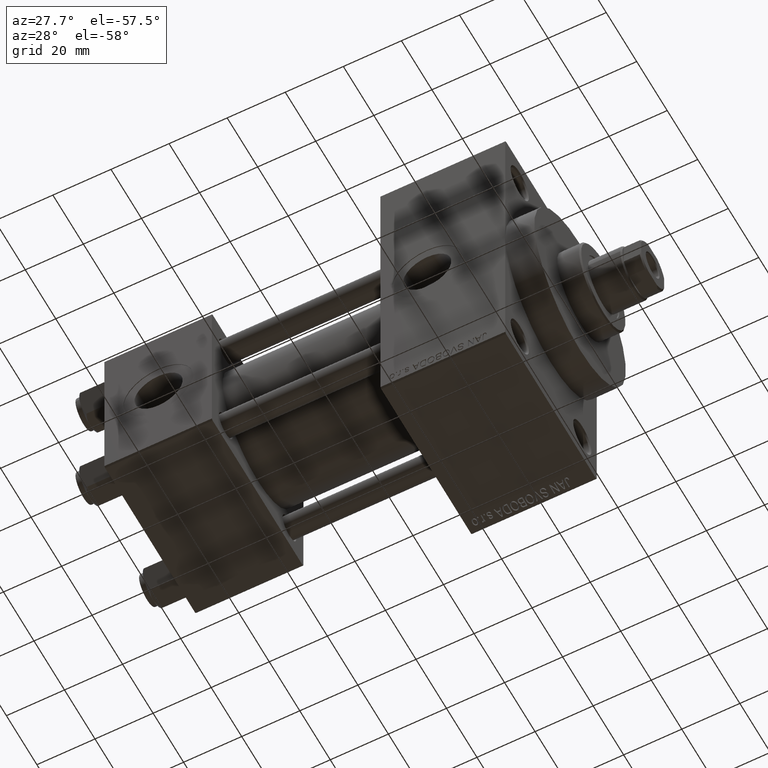
[diagram: clean part render]
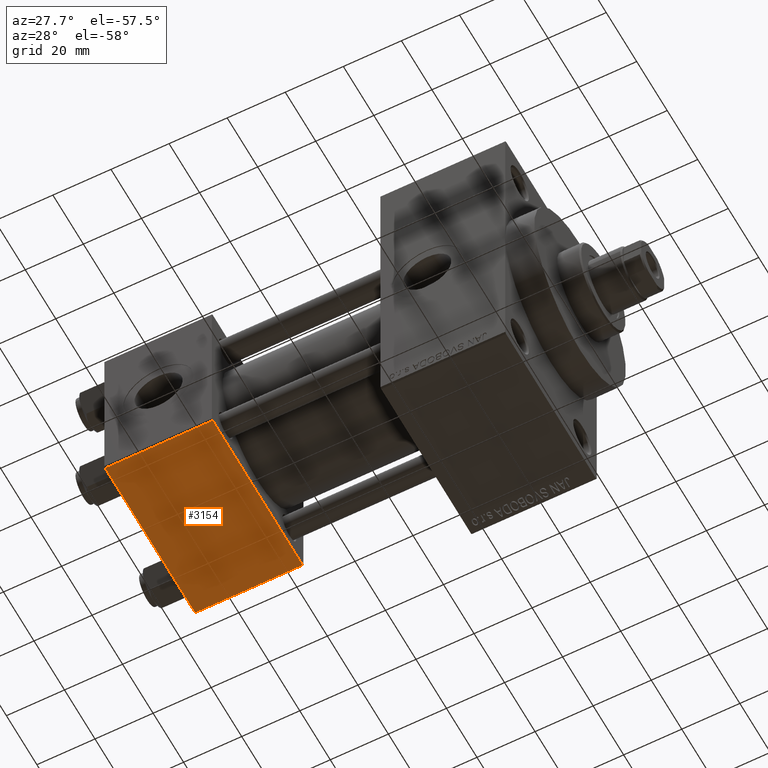
[diagram: same view with one face highlighted and labeled with its STEP entity id]
A machine part, auxiliary view. The second image highlights one B-rep face of the part: STEP entity #3154.
In plain terms, the highlighted planar face has unit normal (0, 0, -1).
Its self-contained STEP definition (entity closure, byte-faithful):
#332 = CARTESIAN_POINT ( 'NONE',  ( 0.000000000000000000, -29.50000000000000000, -30.00000000000000711 ) ) ;
#2264 = DIRECTION ( 'NONE',  ( 0.000000000000000000, 1.000000000000000000, 1.156482317317871725E-16 ) ) ;
#2743 = PLANE ( 'NONE',  #23964 ) ;
#2874 = DIRECTION ( 'NONE',  ( -1.000000000000000000, 0.000000000000000000, 0.000000000000000000 ) ) ;
#3154 = ADVANCED_FACE ( 'NONE', ( #46234 ), #2743, .T. ) ;
#6687 = CARTESIAN_POINT ( 'NONE',  ( 0.000000000000000000, -29.50000000000001066, -30.00000000000000711 ) ) ;
#7214 = VECTOR ( 'NONE', #2874, 1000.000000000000000 ) ;
#9464 = VERTEX_POINT ( 'NONE', #332 ) ;
#11611 = ORIENTED_EDGE ( 'NONE', *, *, #22358, .T. ) ;
#13062 = DIRECTION ( 'NONE',  ( 1.000000000000000000, 0.000000000000000000, 0.000000000000000000 ) ) ;
#13962 = ORIENTED_EDGE ( 'NONE', *, *, #30608, .F. ) ;
#14192 = CARTESIAN_POINT ( 'NONE',  ( 37.00000000000000000, 29.49999999999997868, -30.00000000000000000 ) ) ;
#15363 = CARTESIAN_POINT ( 'NONE',  ( 0.000000000000000000, 29.99999999999999289, -30.00000000000000000 ) ) ;
#15636 = VERTEX_POINT ( 'NONE', #31347 ) ;
#16482 = EDGE_CURVE ( 'NONE', #42864, #43452, #20141, .T. ) ;
#19902 = ORIENTED_EDGE ( 'NONE', *, *, #37302, .T. ) ;
#20141 = LINE ( 'NONE', #23988, #32758 ) ;
#20482 = CARTESIAN_POINT ( 'NONE',  ( 37.00000000000000000, 29.49999999999997868, -30.00000000000000000 ) ) ;
#22358 = EDGE_CURVE ( 'NONE', #15636, #42864, #38854, .T. ) ;
#23964 = AXIS2_PLACEMENT_3D ( 'NONE', #42166, #42630, #2264 ) ;
#23988 = CARTESIAN_POINT ( 'NONE',  ( 37.00000000000000000, 29.99999999999999289, -30.00000000000000000 ) ) ;
#24994 = EDGE_LOOP ( 'NONE', ( #13962, #11611, #27707, #19902 ) ) ;
#27267 = CARTESIAN_POINT ( 'NONE',  ( 37.00000000000000000, -29.50000000000000000, -30.00000000000000711 ) ) ;
#27707 = ORIENTED_EDGE ( 'NONE', *, *, #16482, .T. ) ;
#30608 = EDGE_CURVE ( 'NONE', #15636, #9464, #33292, .T. ) ;
#31325 = LINE ( 'NONE', #6687, #7214 ) ;
#31347 = CARTESIAN_POINT ( 'NONE',  ( 0.000000000000000000, 29.49999999999997868, -30.00000000000000000 ) ) ;
#32758 = VECTOR ( 'NONE', #38283, 1000.000000000000000 ) ;
#33292 = LINE ( 'NONE', #15363, #41451 ) ;
#37302 = EDGE_CURVE ( 'NONE', #43452, #9464, #31325, .T. ) ;
#38283 = DIRECTION ( 'NONE',  ( 0.000000000000000000, -1.000000000000000000, -1.156482317317871725E-16 ) ) ;
#38854 = LINE ( 'NONE', #20482, #39647 ) ;
#39647 = VECTOR ( 'NONE', #13062, 1000.000000000000000 ) ;
#41451 = VECTOR ( 'NONE', #44961, 1000.000000000000000 ) ;
#42166 = CARTESIAN_POINT ( 'NONE',  ( 37.00000000000000000, 29.99999999999999289, -30.00000000000000000 ) ) ;
#42630 = DIRECTION ( 'NONE',  ( 0.000000000000000000, 1.156482317317871725E-16, -1.000000000000000000 ) ) ;
#42864 = VERTEX_POINT ( 'NONE', #14192 ) ;
#43452 = VERTEX_POINT ( 'NONE', #27267 ) ;
#44961 = DIRECTION ( 'NONE',  ( 0.000000000000000000, -1.000000000000000000, -1.156482317317871725E-16 ) ) ;
#46234 = FACE_OUTER_BOUND ( 'NONE', #24994, .T. ) ;